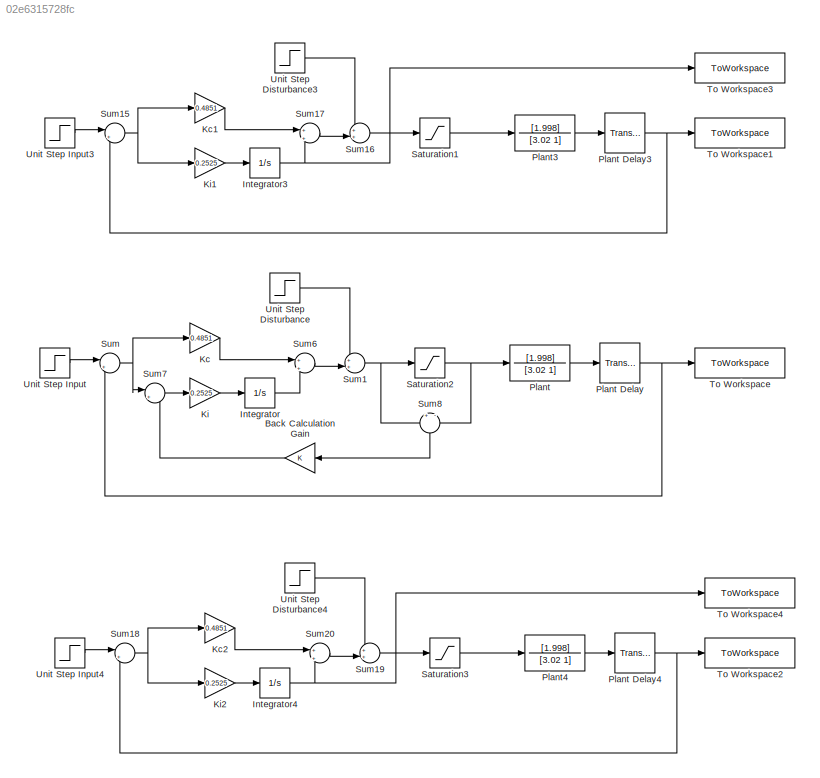
MODEL slx_02e6315728fc
KIND model
CONFIG AbsTol = auto
CONFIG EnableMultiTasking = off
CONFIG FixedStep = auto
CONFIG MaxStep = auto
CONFIG MinStep = auto
CONFIG RelTol = 1e-3
CONFIG SampleTimeConstraint = Unconstrained
CONFIG SolverName = VariableStepAuto
CONFIG StartTime = 0.0
CONFIG StopTime = 80.0
BLOCK [Gain] Back Calculation Gain
BLOCK [Integrator] Integrator
  Ports = [1, 1]
BLOCK [Integrator] Integrator3
  Ports = [1, 1]
BLOCK [Integrator] Integrator4
  LimitOutput = on
  LowerSaturationLimit = -0.5
  Ports = [1, 1]
  UpperSaturationLimit = 0.5
BLOCK [Gain] Kc
  Gain = 0.4851
BLOCK [Gain] Kc1
  Gain = 0.4851
BLOCK [Gain] Kc2
  Gain = 0.4851
BLOCK [Gain] Ki
  Gain = 0.2525
BLOCK [Gain] Ki1
  Gain = 0.2525
BLOCK [Gain] Ki2
  Gain = 0.2525
BLOCK [TransferFcn] Plant
  Denominator = [3.02 1]
  Numerator = [1.998]
BLOCK [TransportDelay] Plant Delay
  BufferSize = 10240
  Ports = [1, 1]
BLOCK [TransportDelay] Plant Delay3
  BufferSize = 10240
  Ports = [1, 1]
BLOCK [TransportDelay] Plant Delay4
  BufferSize = 10240
  Ports = [1, 1]
BLOCK [TransferFcn] Plant3
  Denominator = [3.02 1]
  Numerator = [1.998]
BLOCK [TransferFcn] Plant4
  Denominator = [3.02 1]
  Numerator = [1.998]
BLOCK [Saturate] Saturation1 
  LowerLimit = -0.75
  UpperLimit = 0.75
BLOCK [Saturate] Saturation2
  LowerLimit = -0.75
  UpperLimit = 0.75
BLOCK [Saturate] Saturation3
  LowerLimit = -0.75
  UpperLimit = 0.75
BLOCK [Sum] Sum
  Inputs = |+-
  Ports = [2, 1]
BLOCK [Sum] Sum1
  Inputs = ++|
  Ports = [2, 1]
BLOCK [Sum] Sum15
  Inputs = |+-
  Ports = [2, 1]
BLOCK [Sum] Sum16
  Inputs = ++|
  Ports = [2, 1]
BLOCK [Sum] Sum17
  Inputs = +|+
  Ports = [2, 1]
BLOCK [Sum] Sum18
  Inputs = |+-
  Ports = [2, 1]
BLOCK [Sum] Sum19
  Inputs = ++|
  Ports = [2, 1]
BLOCK [Sum] Sum20
  Inputs = +|+
  Ports = [2, 1]
BLOCK [Sum] Sum6
  Inputs = +|+
  Ports = [2, 1]
BLOCK [Sum] Sum7
  Inputs = |+-
  Ports = [2, 1]
BLOCK [Sum] Sum8
  Inputs = +|-
  NameLocation = left
  Ports = [2, 1]
BLOCK [ToWorkspace] To Workspace
  FixptAsFi = on
  MaxDataPoints = inf
  Ports = [1]
  SampleTime = 0.0001
  SaveFormat = Timeseries
  VariableName = BackCalculation
BLOCK [ToWorkspace] To Workspace1
  FixptAsFi = on
  MaxDataPoints = inf
  Ports = [1]
  SampleTime = 0.0001
  SaveFormat = Timeseries
  VariableName = NoAntiWindup
BLOCK [ToWorkspace] To Workspace2
  FixptAsFi = on
  MaxDataPoints = inf
  Ports = [1]
  SampleTime = 0.0001
  SaveFormat = Timeseries
  VariableName = IntegratorClamped
BLOCK [ToWorkspace] To Workspace3
  FixptAsFi = on
  MaxDataPoints = inf
  Ports = [1]
  SampleTime = 0.0001
  SaveFormat = Timeseries
  VariableName = UnclampedSignal
BLOCK [ToWorkspace] To Workspace4
  FixptAsFi = on
  MaxDataPoints = inf
  Ports = [1]
  SampleTime = 0.0001
  SaveFormat = Timeseries
  VariableName = ClampedSignal
BLOCK [Step] Unit Step Disturbance
  SampleTime = 0
  Time = 40
BLOCK [Step] Unit Step Disturbance3
  SampleTime = 0
  Time = 40
BLOCK [Step] Unit Step Disturbance4
  SampleTime = 0
  Time = 40
BLOCK [Step] Unit Step Input
  SampleTime = 0
  Time = 0
BLOCK [Step] Unit Step Input3
  SampleTime = 0
  Time = 0
BLOCK [Step] Unit Step Input4
  SampleTime = 0
  Time = 0
LINE Back Calculation Gain:1 -> Sum7:2
NET Integrator3:1 -> Sum17:2, To Workspace3:1
NET Integrator4:1 -> Sum20:2, To Workspace4:1
LINE Integrator:1 -> Sum6:2
LINE Kc1:1 -> Sum17:1
LINE Kc2:1 -> Sum20:1
LINE Kc:1 -> Sum6:1
LINE Ki1:1 -> Integrator3:1
LINE Ki2:1 -> Integrator4:1
LINE Ki:1 -> Integrator:1
NET Plant Delay3:1 -> Sum15:2, To Workspace1:1
NET Plant Delay4:1 -> Sum18:2, To Workspace2:1
NET Plant Delay:1 -> Sum:2, To Workspace:1
LINE Plant3:1 -> Plant Delay3:1
LINE Plant4:1 -> Plant Delay4:1
LINE Plant:1 -> Plant Delay:1
LINE Saturation1 :1 -> Plant3:1
NET Saturation2:1 -> Plant:1, Sum8:2
LINE Saturation3:1 -> Plant4:1
NET Sum15:1 -> Kc1:1, Ki1:1
LINE Sum16:1 -> Saturation1 :1
LINE Sum17:1 -> Sum16:2
NET Sum18:1 -> Kc2:1, Ki2:1
LINE Sum19:1 -> Saturation3:1
NET Sum1:1 -> Saturation2:1, Sum8:1
LINE Sum20:1 -> Sum19:2
LINE Sum6:1 -> Sum1:2
LINE Sum7:1 -> Ki:1
LINE Sum8:1 -> Back Calculation Gain:1
NET Sum:1 -> Kc:1, Sum7:1
LINE Unit Step Disturbance3:1 -> Sum16:1
LINE Unit Step Disturbance4:1 -> Sum19:1
LINE Unit Step Disturbance:1 -> Sum1:1
LINE Unit Step Input3:1 -> Sum15:1
LINE Unit Step Input4:1 -> Sum18:1
LINE Unit Step Input:1 -> Sum:1
note: NET lines group one-source signal fan-out (src -> all destinations, sorted); 1:1 wires keep LINE
